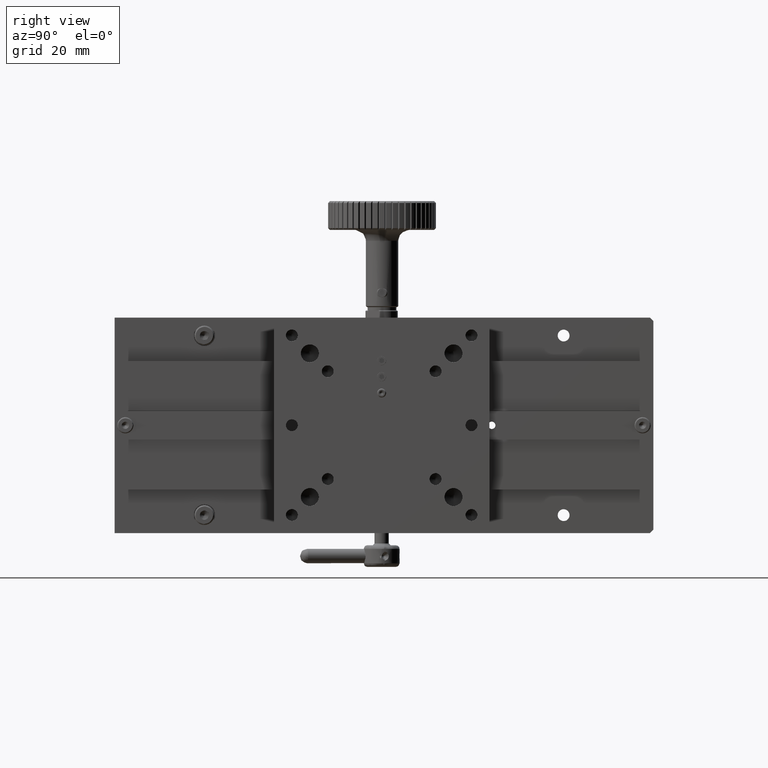
[diagram: clean part render]
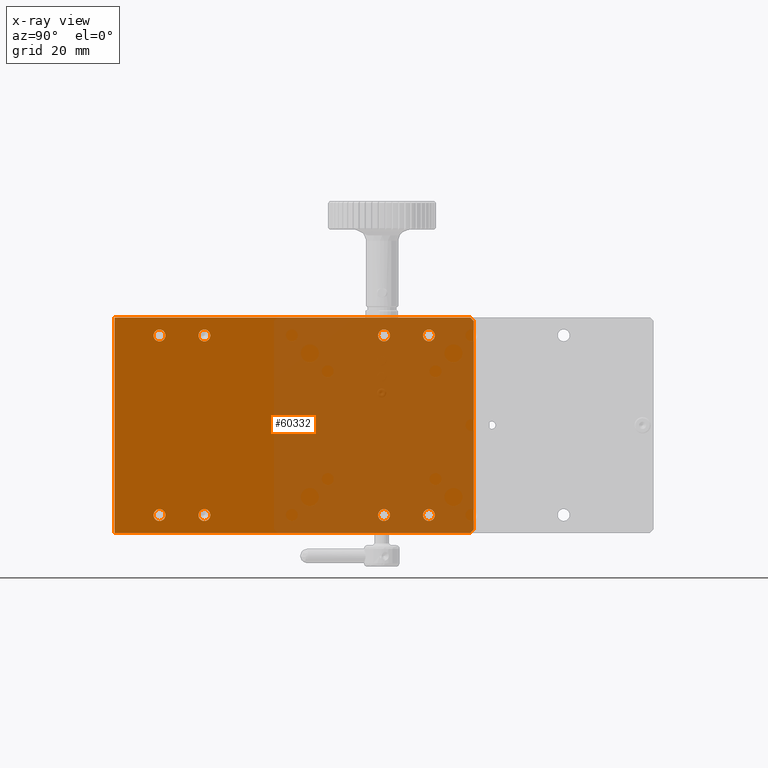
[diagram: x-ray — body ghosted, one internal face saturated and labeled with its STEP entity id]
A machine part, right view, then the same camera in x-ray: the body is ghosted and one INTERNAL B-rep face — a face not visible from any outside direction — is saturated and labeled: STEP entity #60332.
In plain terms, the highlighted planar face has unit normal (-1, 0, 0).
Its self-contained STEP definition (entity closure, byte-faithful):
#238 = EDGE_CURVE ( 'NONE', #92949, #92949, #61473, .T. ) ;
#499 = VERTEX_POINT ( 'NONE', #103138 ) ;
#2194 = EDGE_CURVE ( 'NONE', #54443, #57867, #35441, .T. ) ;
#2884 = CIRCLE ( 'NONE', #70074, 1.649999999999984812 ) ;
#3425 = VECTOR ( 'NONE', #73896, 1000.000000000000000 ) ;
#4944 = DIRECTION ( 'NONE',  ( 1.000000000000000000, 0.000000000000000000, -6.982962677686266711E-15 ) ) ;
#5361 = CARTESIAN_POINT ( 'NONE',  ( 49.13262096468591977, 130.8153669698312456, 116.1294056282231111 ) ) ;
#6302 = CIRCLE ( 'NONE', #37364, 1.649999999999984812 ) ;
#6991 = EDGE_CURVE ( 'NONE', #499, #27792, #41939, .T. ) ;
#8705 = EDGE_LOOP ( 'NONE', ( #35130, #50255, #12567, #32714, #101414, #8908 ) ) ;
#8908 = ORIENTED_EDGE ( 'NONE', *, *, #99091, .F. ) ;
#10740 = EDGE_CURVE ( 'NONE', #57867, #32825, #41513, .T. ) ;
#11276 = DIRECTION ( 'NONE',  ( -8.410780489584597367E-15, 0.000000000000000000, -1.000000000000000000 ) ) ;
#11305 = EDGE_LOOP ( 'NONE', ( #80672 ) ) ;
#11827 = DIRECTION ( 'NONE',  ( 1.000000000000000000, 0.000000000000000000, -6.982962677686266711E-15 ) ) ;
#12567 = ORIENTED_EDGE ( 'NONE', *, *, #100099, .F. ) ;
#13064 = EDGE_CURVE ( 'NONE', #55129, #55129, #78303, .T. ) ;
#14710 = ORIENTED_EDGE ( 'NONE', *, *, #94675, .F. ) ;
#15100 = CIRCLE ( 'NONE', #63282, 1.649999999999984812 ) ;
#17207 = CARTESIAN_POINT ( 'NONE',  ( 49.13262096468556450, 130.8153669698312456, 66.12940562822318213 ) ) ;
#17298 = VECTOR ( 'NONE', #28617, 1000.000000000000000 ) ;
#17749 = VERTEX_POINT ( 'NONE', #50642 ) ;
#18854 = FACE_BOUND ( 'NONE', #24581, .T. ) ;
#19385 = DIRECTION ( 'NONE',  ( 6.982962677686266711E-15, 0.000000000000000000, 1.000000000000000000 ) ) ;
#20003 = CARTESIAN_POINT ( 'NONE',  ( 49.13262096468595530, 155.8153669698312456, 122.7794056282231310 ) ) ;
#20395 = CIRCLE ( 'NONE', #80638, 1.649999999999984812 ) ;
#20441 = FACE_BOUND ( 'NONE', #73730, .T. ) ;
#20540 = VERTEX_POINT ( 'NONE', #28659 ) ;
#24581 = EDGE_LOOP ( 'NONE', ( #66446 ) ) ;
#24732 = ORIENTED_EDGE ( 'NONE', *, *, #52230, .F. ) ;
#24825 = DIRECTION ( 'NONE',  ( 1.000000000000000000, 0.000000000000000000, -6.982962677686266711E-15 ) ) ;
#25914 = ORIENTED_EDGE ( 'NONE', *, *, #91514, .F. ) ;
#26288 = DIRECTION ( 'NONE',  ( 1.000000000000000000, 0.000000000000000000, -6.982962677686266711E-15 ) ) ;
#26453 = EDGE_CURVE ( 'NONE', #72393, #72393, #6302, .T. ) ;
#27792 = VERTEX_POINT ( 'NONE', #61678 ) ;
#28511 = VECTOR ( 'NONE', #92637, 1000.000000000000000 ) ;
#28617 = DIRECTION ( 'NONE',  ( -6.982962677686266711E-15, -0.000000000000000000, -1.000000000000000000 ) ) ;
#28659 = CARTESIAN_POINT ( 'NONE',  ( 49.13262096468595530, 155.8153669698312456, 121.7794056282231594 ) ) ;
#28919 = DIRECTION ( 'NONE',  ( -8.410780489584597367E-15, 0.000000000000000000, -1.000000000000000000 ) ) ;
#29059 = FACE_BOUND ( 'NONE', #43359, .T. ) ;
#29136 = VERTEX_POINT ( 'NONE', #5361 ) ;
#30988 = VECTOR ( 'NONE', #75735, 999.9999999999998863 ) ;
#32714 = ORIENTED_EDGE ( 'NONE', *, *, #10740, .F. ) ;
#32825 = VERTEX_POINT ( 'NONE', #80728 ) ;
#32914 = CARTESIAN_POINT ( 'NONE',  ( 49.13262096468557871, 130.8153669698312456, 67.77940562822317361 ) ) ;
#35130 = ORIENTED_EDGE ( 'NONE', *, *, #6991, .F. ) ;
#35441 = LINE ( 'NONE', #99650, #28511 ) ;
#35577 = DIRECTION ( 'NONE',  ( 1.000000000000000000, 0.000000000000000000, -6.982962677686266711E-15 ) ) ;
#37243 = LINE ( 'NONE', #20003, #17298 ) ;
#37364 = AXIS2_PLACEMENT_3D ( 'NONE', #73095, #97351, #47734 ) ;
#41513 = LINE ( 'NONE', #49601, #3425 ) ;
#41752 = LINE ( 'NONE', #51434, #30988 ) ;
#41939 = LINE ( 'NONE', #75397, #59339 ) ;
#42843 = EDGE_CURVE ( 'NONE', #68525, #68525, #20395, .T. ) ;
#43140 = DIRECTION ( 'NONE',  ( -8.410780489584597367E-15, 0.000000000000000000, -1.000000000000000000 ) ) ;
#43193 = DIRECTION ( 'NONE',  ( -8.410780489584597367E-15, 0.000000000000000000, -1.000000000000000000 ) ) ;
#43359 = EDGE_LOOP ( 'NONE', ( #74010 ) ) ;
#43650 = FACE_BOUND ( 'NONE', #11305, .T. ) ;
#44583 = DIRECTION ( 'NONE',  ( -8.410780489584597367E-15, 0.000000000000000000, -1.000000000000000000 ) ) ;
#45358 = CARTESIAN_POINT ( 'NONE',  ( 49.13262096468574924, 55.81536696983124557, 62.77940562822313808 ) ) ;
#46909 = CARTESIAN_POINT ( 'NONE',  ( 49.13262096468591977, 68.31536696983123136, 116.1294056282231537 ) ) ;
#47497 = DIRECTION ( 'NONE',  ( -0.000000000000000000, -0.7071067811865525687, -0.7071067811865425767 ) ) ;
#47734 = DIRECTION ( 'NONE',  ( -8.410780489584597367E-15, 0.000000000000000000, -1.000000000000000000 ) ) ;
#49601 = CARTESIAN_POINT ( 'NONE',  ( 49.13262096468595530, 155.8153669698312456, 122.7794056282231310 ) ) ;
#50255 = ORIENTED_EDGE ( 'NONE', *, *, #102860, .F. ) ;
#50642 = CARTESIAN_POINT ( 'NONE',  ( 49.13262096468556450, 143.3153669698312456, 66.12940562822311108 ) ) ;
#51434 = CARTESIAN_POINT ( 'NONE',  ( 49.13262096468595530, 155.8153669698311319, 121.7794056282232447 ) ) ;
#51948 = CARTESIAN_POINT ( 'NONE',  ( 49.13262096468556450, 68.31536696983124557, 66.12940562822312529 ) ) ;
#52230 = EDGE_CURVE ( 'NONE', #29136, #29136, #75933, .T. ) ;
#52377 = EDGE_CURVE ( 'NONE', #62571, #62571, #74154, .T. ) ;
#52805 = FACE_BOUND ( 'NONE', #83653, .T. ) ;
#53342 = PLANE ( 'NONE',  #82700 ) ;
#53551 = CARTESIAN_POINT ( 'NONE',  ( 49.13262096468591977, 80.81536696983124557, 116.1294056282231111 ) ) ;
#54443 = VERTEX_POINT ( 'NONE', #45358 ) ;
#55129 = VERTEX_POINT ( 'NONE', #53551 ) ;
#57386 = LINE ( 'NONE', #81709, #96437 ) ;
#57867 = VERTEX_POINT ( 'NONE', #87589 ) ;
#58186 = VERTEX_POINT ( 'NONE', #17207 ) ;
#58845 = CARTESIAN_POINT ( 'NONE',  ( 49.13262096468592688, 80.81536696983124557, 117.7794056282231026 ) ) ;
#59339 = VECTOR ( 'NONE', #47497, 999.9999999999998863 ) ;
#60332 = ADVANCED_FACE ( 'NONE', ( #94338, #60898, #52805, #84685, #93284, #18854, #43650, #20441, #29059 ), #53342, .F. ) ;
#60898 = FACE_BOUND ( 'NONE', #94444, .T. ) ;
#61473 = CIRCLE ( 'NONE', #99348, 1.649999999999984812 ) ;
#61678 = CARTESIAN_POINT ( 'NONE',  ( 49.13262096468554319, 154.8153669698312456, 62.77940562822313808 ) ) ;
#62571 = VERTEX_POINT ( 'NONE', #46909 ) ;
#63282 = AXIS2_PLACEMENT_3D ( 'NONE', #32914, #24825, #43140 ) ;
#64568 = AXIS2_PLACEMENT_3D ( 'NONE', #58845, #84214, #43193 ) ;
#66446 = ORIENTED_EDGE ( 'NONE', *, *, #52377, .F. ) ;
#66728 = ORIENTED_EDGE ( 'NONE', *, *, #13064, .F. ) ;
#68525 = VERTEX_POINT ( 'NONE', #101424 ) ;
#69379 = DIRECTION ( 'NONE',  ( 1.000000000000000000, 0.000000000000000000, -6.982962677686266711E-15 ) ) ;
#70074 = AXIS2_PLACEMENT_3D ( 'NONE', #101740, #69379, #28919 ) ;
#71208 = EDGE_LOOP ( 'NONE', ( #24732 ) ) ;
#72393 = VERTEX_POINT ( 'NONE', #98780 ) ;
#73095 = CARTESIAN_POINT ( 'NONE',  ( 49.13262096468592688, 143.3153669698312456, 117.7794056282231026 ) ) ;
#73250 = EDGE_LOOP ( 'NONE', ( #25914 ) ) ;
#73730 = EDGE_LOOP ( 'NONE', ( #14710 ) ) ;
#73896 = DIRECTION ( 'NONE',  ( 0.000000000000000000, 1.000000000000000000, -0.000000000000000000 ) ) ;
#74010 = ORIENTED_EDGE ( 'NONE', *, *, #26453, .F. ) ;
#74154 = CIRCLE ( 'NONE', #79331, 1.649999999999984812 ) ;
#75397 = CARTESIAN_POINT ( 'NONE',  ( 49.13262096468555029, 155.8153669698313593, 63.77940562822322335 ) ) ;
#75735 = DIRECTION ( 'NONE',  ( -0.000000000000000000, 0.7071067811865525687, -0.7071067811865425767 ) ) ;
#75933 = CIRCLE ( 'NONE', #105164, 1.649999999999984812 ) ;
#76570 = DIRECTION ( 'NONE',  ( -1.000000000000000000, 0.000000000000000000, 6.982962677686266711E-15 ) ) ;
#77664 = CARTESIAN_POINT ( 'NONE',  ( 49.13262096468592688, 130.8153669698312456, 117.7794056282231026 ) ) ;
#78303 = CIRCLE ( 'NONE', #64568, 1.649999999999984812 ) ;
#78726 = DIRECTION ( 'NONE',  ( -8.410780489584597367E-15, 0.000000000000000000, -1.000000000000000000 ) ) ;
#79331 = AXIS2_PLACEMENT_3D ( 'NONE', #94358, #35577, #11276 ) ;
#80638 = AXIS2_PLACEMENT_3D ( 'NONE', #100173, #26288, #44583 ) ;
#80672 = ORIENTED_EDGE ( 'NONE', *, *, #238, .F. ) ;
#80728 = CARTESIAN_POINT ( 'NONE',  ( 49.13262096468595530, 154.8153669698312171, 122.7794056282231452 ) ) ;
#81709 = CARTESIAN_POINT ( 'NONE',  ( 49.13262096468554319, 155.8153669698312456, 62.77940562822313808 ) ) ;
#82235 = DIRECTION ( 'NONE',  ( -0.000000000000000000, -1.000000000000000000, 0.000000000000000000 ) ) ;
#82700 = AXIS2_PLACEMENT_3D ( 'NONE', #86284, #76570, #19385 ) ;
#83653 = EDGE_LOOP ( 'NONE', ( #66728 ) ) ;
#84214 = DIRECTION ( 'NONE',  ( 1.000000000000000000, 0.000000000000000000, -6.982962677686266711E-15 ) ) ;
#84685 = FACE_BOUND ( 'NONE', #73250, .T. ) ;
#86284 = CARTESIAN_POINT ( 'NONE',  ( 49.13262096468595530, 155.8153669698312456, 122.7794056282231310 ) ) ;
#87589 = CARTESIAN_POINT ( 'NONE',  ( 49.13262096468595530, 55.81536696983124557, 122.7794056282233441 ) ) ;
#91514 = EDGE_CURVE ( 'NONE', #58186, #58186, #15100, .T. ) ;
#92637 = DIRECTION ( 'NONE',  ( 6.982962677686266711E-15, 0.000000000000000000, 1.000000000000000000 ) ) ;
#92949 = VERTEX_POINT ( 'NONE', #51948 ) ;
#93284 = FACE_BOUND ( 'NONE', #71208, .T. ) ;
#93475 = CARTESIAN_POINT ( 'NONE',  ( 49.13262096468557871, 68.31536696983124557, 67.77940562822311676 ) ) ;
#94338 = FACE_OUTER_BOUND ( 'NONE', #8705, .T. ) ;
#94358 = CARTESIAN_POINT ( 'NONE',  ( 49.13262096468592688, 68.31536696983123136, 117.7794056282231452 ) ) ;
#94444 = EDGE_LOOP ( 'NONE', ( #97985 ) ) ;
#94675 = EDGE_CURVE ( 'NONE', #17749, #17749, #2884, .T. ) ;
#95589 = DIRECTION ( 'NONE',  ( -8.410780489584597367E-15, 0.000000000000000000, -1.000000000000000000 ) ) ;
#96437 = VECTOR ( 'NONE', #82235, 1000.000000000000000 ) ;
#97351 = DIRECTION ( 'NONE',  ( 1.000000000000000000, 0.000000000000000000, -6.982962677686266711E-15 ) ) ;
#97985 = ORIENTED_EDGE ( 'NONE', *, *, #42843, .F. ) ;
#98780 = CARTESIAN_POINT ( 'NONE',  ( 49.13262096468591977, 143.3153669698312456, 116.1294056282231111 ) ) ;
#99091 = EDGE_CURVE ( 'NONE', #27792, #54443, #57386, .T. ) ;
#99348 = AXIS2_PLACEMENT_3D ( 'NONE', #93475, #4944, #95589 ) ;
#99650 = CARTESIAN_POINT ( 'NONE',  ( 49.13262096468595530, 55.81536696983124557, 122.7794056282231310 ) ) ;
#100099 = EDGE_CURVE ( 'NONE', #32825, #20540, #41752, .T. ) ;
#100173 = CARTESIAN_POINT ( 'NONE',  ( 49.13262096468557871, 80.81536696983124557, 67.77940562822315940 ) ) ;
#101414 = ORIENTED_EDGE ( 'NONE', *, *, #2194, .F. ) ;
#101424 = CARTESIAN_POINT ( 'NONE',  ( 49.13262096468556450, 80.81536696983124557, 66.12940562822316792 ) ) ;
#101740 = CARTESIAN_POINT ( 'NONE',  ( 49.13262096468557871, 143.3153669698312456, 67.77940562822310255 ) ) ;
#102860 = EDGE_CURVE ( 'NONE', #20540, #499, #37243, .T. ) ;
#103138 = CARTESIAN_POINT ( 'NONE',  ( 49.13262096468564977, 155.8153669698312740, 63.77940562822312387 ) ) ;
#105164 = AXIS2_PLACEMENT_3D ( 'NONE', #77664, #11827, #78726 ) ;